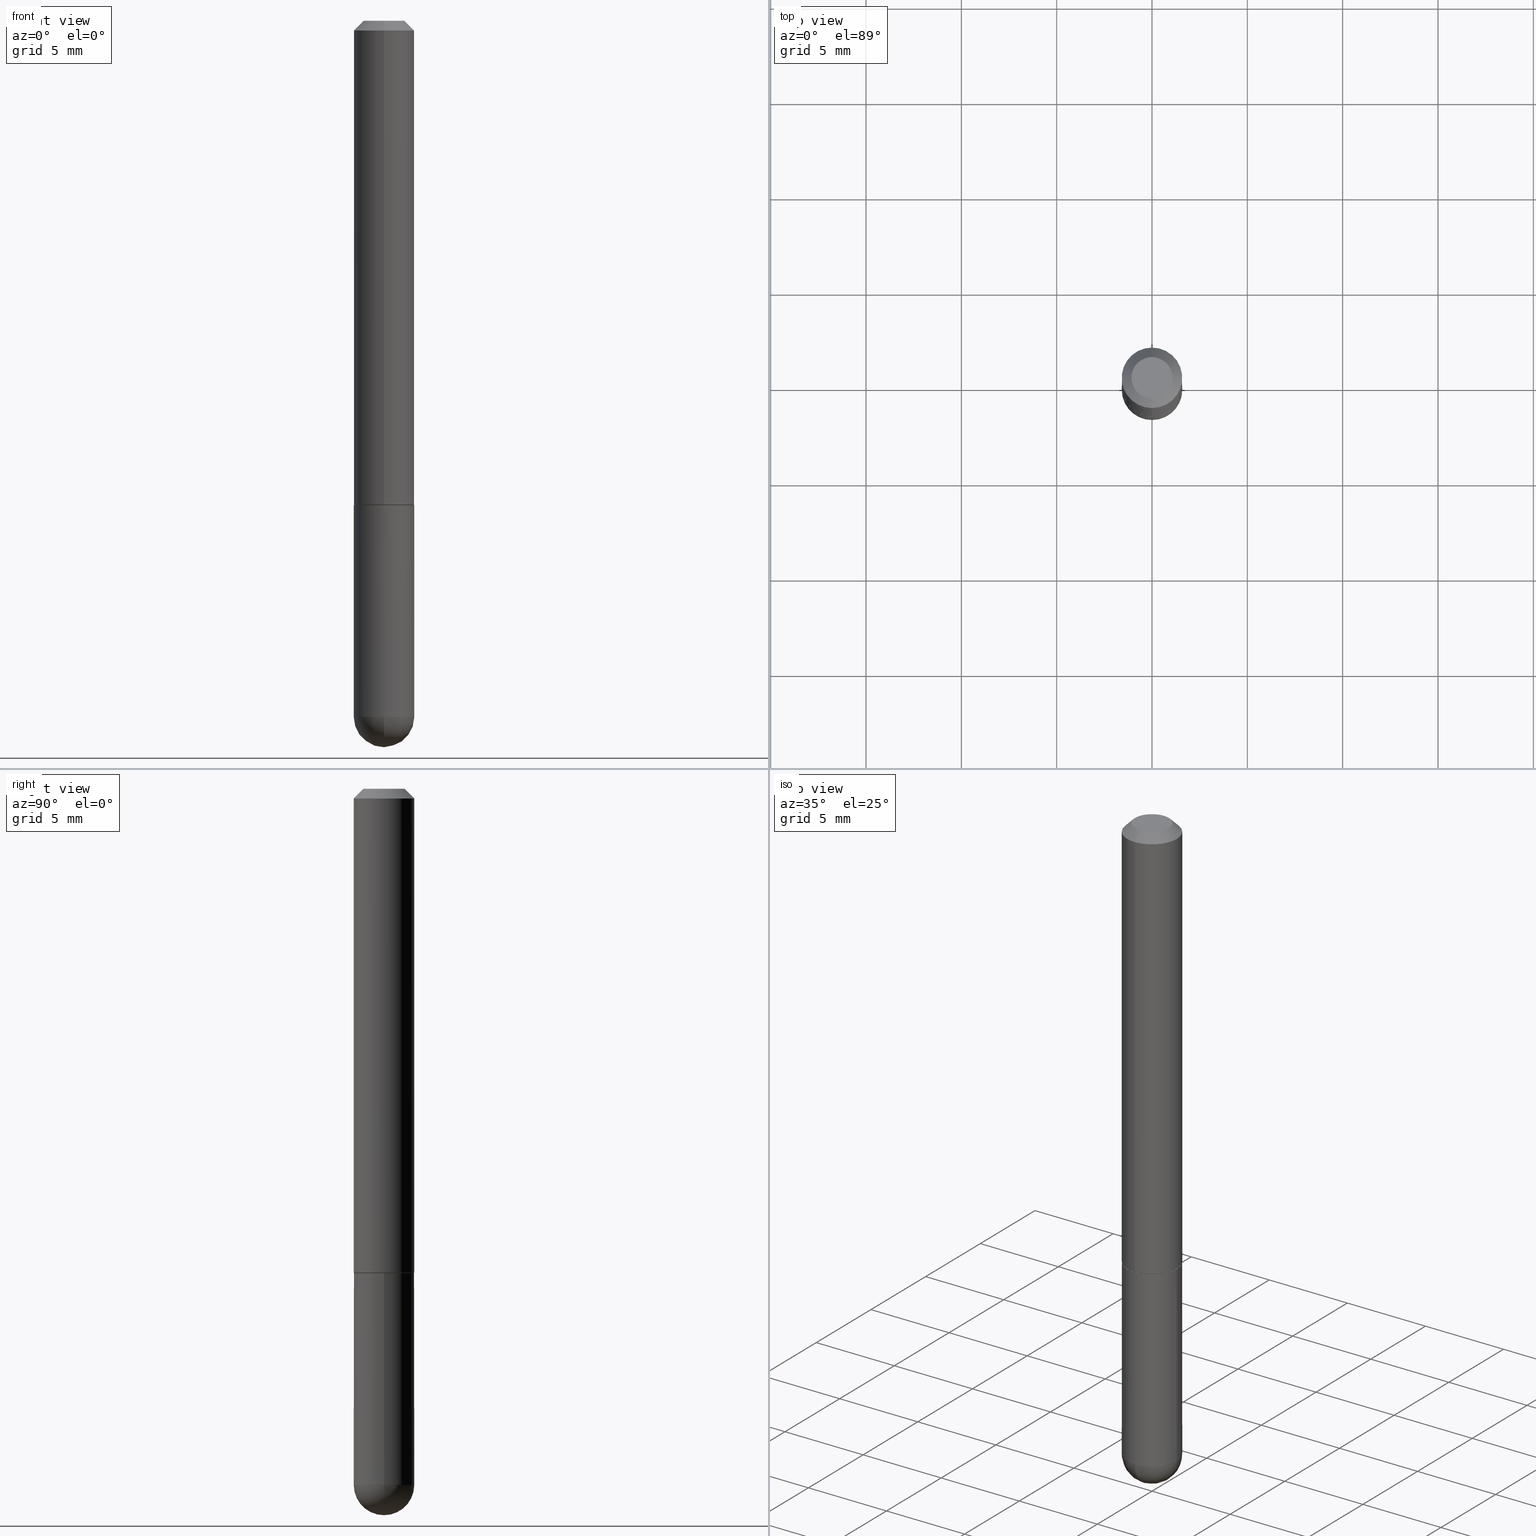
[diagram: canonical four-view strip — front | top / right | iso, engineering-drawing reading convention]
A machine part, canonical four-view strip (front | top / right | iso — engineering-drawing reading convention). The complete STEP part file that produces these views, byte-faithful:
ISO-10303-21;
HEADER;
FILE_DESCRIPTION (( 'STEP AP203' ),
    '1' );
FILE_NAME ('30516.STEP',
    '2024-02-21T16:39:18',
    ( '' ),
    ( '' ),
    'SwSTEP 2.0',
    'SolidWorks 2023',
    '' );
FILE_SCHEMA (( 'CONFIG_CONTROL_DESIGN' ));
ENDSEC;

DATA;
#1 = APPROVAL_DATE_TIME ( #30, #392 ) ;
#2 =( LENGTH_UNIT ( ) NAMED_UNIT ( * ) SI_UNIT ( $, .METRE. ) );
#3 = CIRCLE ( 'NONE', #51, 0.04249999999999978795 ) ;
#4 = AXIS2_PLACEMENT_3D ( 'NONE', #338, #281, #409 ) ;
#5 = DIRECTION ( 'NONE',  ( -6.982962677686265922E-15, -1.000000000000000000, 3.483106191921936738E-15 ) ) ;
#6 = ORIENTED_EDGE ( 'NONE', *, *, #143, .T. ) ;
#7 = CALENDAR_DATE ( 2024, 21, 2 ) ;
#8 = CC_DESIGN_SECURITY_CLASSIFICATION ( #80, ( #215 ) ) ;
#9 = ORIENTED_EDGE ( 'NONE', *, *, #324, .T. ) ;
#10 = EDGE_CURVE ( 'NONE', #211, #109, #16, .T. ) ;
#11 = DIRECTION ( 'NONE',  ( -2.445468806185136597E-29, 3.491481338843145583E-15, 1.000000000000000000 ) ) ;
#12 = ADVANCED_FACE ( 'NONE', ( #247 ), #179, .F. ) ;
#13 = APPROVAL ( #230, 'UNSPECIFIED' ) ;
#14 = AXIS2_PLACEMENT_3D ( 'NONE', #233, #386, #165 ) ;
#15 = PERSON_AND_ORGANIZATION ( #82, #203 ) ;
#16 = LINE ( 'NONE', #210, #79 ) ;
#17 = CARTESIAN_POINT ( 'NONE',  ( 3.184241630977248732E-29, -5.493186792727072638E-15, -1.437500000000000222 ) ) ;
#18 = LOCAL_TIME ( 11, 39, 18.00000000000000000, #168 ) ;
#19 = DIRECTION ( 'NONE',  ( -2.453213519139467542E-29, 3.480390469090857186E-15, 1.000000000000000000 ) ) ;
#20 = ORIENTED_EDGE ( 'NONE', *, *, #143, .F. ) ;
#21 = VERTEX_POINT ( 'NONE', #84 ) ;
#22 = ORIENTED_EDGE ( 'NONE', *, *, #394, .T. ) ;
#23 = ORIENTED_EDGE ( 'NONE', *, *, #105, .T. ) ;
#24 = DIRECTION ( 'NONE',  ( -2.453213519139467542E-29, 3.480390469090857186E-15, 1.000000000000000000 ) ) ;
#25 = DIRECTION ( 'NONE',  ( -1.000000000000000000, 6.982962677686266711E-15, -4.883557194083112901E-29 ) ) ;
#26 = APPROVAL_PERSON_ORGANIZATION ( #171, #197, #73 ) ;
#27 = CARTESIAN_POINT ( 'NONE',  ( 0.06249999999999997918, -3.927916506198537646E-15, -1.000000000000000222 ) ) ;
#28 = DIRECTION ( 'NONE',  ( -6.982962677686266711E-15, -1.000000000000000000, 3.480390469090857580E-15 ) ) ;
#29 = DIRECTION ( 'NONE',  ( -4.937700262164969294E-15, -0.7071067811866054154, 0.7071067811864896191 ) ) ;
#30 = DATE_AND_TIME ( #273, #253 ) ;
#31 = DIRECTION ( 'NONE',  ( -2.445468806185136597E-29, 3.491481338843145583E-15, 1.000000000000000000 ) ) ;
#32 = DIRECTION ( 'NONE',  ( 2.453213519139467262E-29, -3.480390469090857186E-15, -1.000000000000000000 ) ) ;
#33 = DATE_AND_TIME ( #385, #142 ) ;
#34 = AXIS2_PLACEMENT_3D ( 'NONE', #110, #32, #227 ) ;
#35 = EDGE_LOOP ( 'NONE', ( #49, #252 ) ) ;
#36 = SHAPE_DEFINITION_REPRESENTATION ( #55, #173 ) ;
#37 = CARTESIAN_POINT ( 'NONE',  ( 4.906427038278943738E-31, -6.960780938181726057E-17, -0.02000000000000003511 ) ) ;
#38 = EDGE_CURVE ( 'NONE', #219, #342, #217, .T. ) ;
#39 = AXIS2_PLACEMENT_3D ( 'NONE', #54, #145, #155 ) ;
#40 = AXIS2_PLACEMENT_3D ( 'NONE', #64, #31, #156 ) ;
#41 = VERTEX_POINT ( 'NONE', #254 ) ;
#42 = CARTESIAN_POINT ( 'NONE',  ( 3.515361408891134418E-29, -5.019004424587023131E-15, -1.437500000000000222 ) ) ;
#43 = DIRECTION ( 'NONE',  ( 1.000000000000000000, 0.000000000000000000, 0.000000000000000000 ) ) ;
#44 = CIRCLE ( 'NONE', #285, 0.04249999999999978795 ) ;
#45 = AXIS2_PLACEMENT_3D ( 'NONE', #341, #187, #62 ) ;
#46 = ADVANCED_FACE ( 'NONE', ( #374 ), #286, .T. ) ;
#47 = APPROVAL_ROLE ( '' ) ;
#48 = CYLINDRICAL_SURFACE ( 'NONE', #332, 0.06250000000000002776 ) ;
#49 = ORIENTED_EDGE ( 'NONE', *, *, #189, .T. ) ;
#50 = ADVANCED_FACE ( 'NONE', ( #339 ), #103, .T. ) ;
#51 = AXIS2_PLACEMENT_3D ( 'NONE', #226, #58, #370 ) ;
#52 = AXIS2_PLACEMENT_3D ( 'NONE', #67, #196, #380 ) ;
#53 = CARTESIAN_POINT ( 'NONE',  ( 4.906427038278943738E-31, -6.960780938181726057E-17, -0.02000000000000003511 ) ) ;
#54 = CARTESIAN_POINT ( 'NONE',  ( 0.000000000000000000, 0.000000000000000000, 0.000000000000000000 ) ) ;
#55 = PRODUCT_DEFINITION_SHAPE ( 'NONE', 'NONE',  #232 ) ;
#56 = DIRECTION ( 'NONE',  ( 6.982962677686266711E-15, 1.000000000000000000, -4.370956789862806950E-15 ) ) ;
#57 = FACE_OUTER_BOUND ( 'NONE', #235, .T. ) ;
#58 = DIRECTION ( 'NONE',  ( -2.453213519139467542E-29, 3.480390469090857186E-15, 1.000000000000000000 ) ) ;
#59 = DIRECTION ( 'NONE',  ( -6.982962677686266711E-15, -1.000000000000000000, 4.370956789862816416E-15 ) ) ;
#60 = DIRECTION ( 'NONE',  ( -2.453213519139467542E-29, 3.480390469090857186E-15, 1.000000000000000000 ) ) ;
#61 = CONICAL_SURFACE ( 'NONE', #225, 0.06149999999999997136, 0.7853981633975336552 ) ;
#62 = DIRECTION ( 'NONE',  ( -1.000000000000000000, 6.982962677686265922E-15, -4.876176775795935793E-29 ) ) ;
#63 = VERTEX_POINT ( 'NONE', #314 ) ;
#64 = CARTESIAN_POINT ( 'NONE',  ( 3.515361408891134418E-29, -5.019004424587023131E-15, -1.437500000000000222 ) ) ;
#65 = PLANE ( 'NONE',  #34 ) ;
#66 = LINE ( 'NONE', #195, #137 ) ;
#67 = CARTESIAN_POINT ( 'NONE',  ( 4.906427038278943738E-31, -6.960780938181726057E-17, -0.02000000000000003511 ) ) ;
#68 = ORIENTED_EDGE ( 'NONE', *, *, #378, .T. ) ;
#69 = CIRCLE ( 'NONE', #52, 0.06249999999999997918 ) ;
#70 = ORIENTED_EDGE ( 'NONE', *, *, #378, .F. ) ;
#71 = EDGE_CURVE ( 'NONE', #63, #231, #188, .T. ) ;
#72 = ORIENTED_EDGE ( 'NONE', *, *, #306, .T. ) ;
#73 = APPROVAL_ROLE ( '' ) ;
#74 = ORIENTED_EDGE ( 'NONE', *, *, #200, .F. ) ;
#75 = APPLICATION_PROTOCOL_DEFINITION ( 'international standard', 'config_control_design', 1994, #329 ) ;
#76 = APPROVAL_PERSON_ORGANIZATION ( #15, #392, #47 ) ;
#77 = DIRECTION ( 'NONE',  ( 1.000000000000000000, -6.982962677686265922E-15, 4.883557194083112340E-29 ) ) ;
#78 = ORIENTED_EDGE ( 'NONE', *, *, #10, .F. ) ;
#79 = VECTOR ( 'NONE', #408, 39.37007874015748143 ) ;
#80 = SECURITY_CLASSIFICATION ( '', '', #115 ) ;
#81 = COORDINATED_UNIVERSAL_TIME_OFFSET ( 5, 0, .BEHIND. ) ;
#82 = PERSON ( 'UNSPECIFIED', 'UNSPECIFIED', 'UNSPECIFIED', ('UNSPECIFIED'), ('UNSPECIFIED'), ('UNSPECIFIED') ) ;
#83 = DIRECTION ( 'NONE',  ( 1.000000000000000000, -6.982962677686265133E-15, 0.000000000000000000 ) ) ;
#84 = CARTESIAN_POINT ( 'NONE',  ( 4.364351673553919652E-16, 0.06249999999999991673, -0.02000000000000025022 ) ) ;
#85 = VERTEX_POINT ( 'NONE', #119 ) ;
#86 = LOCAL_TIME ( 11, 39, 18.00000000000000000, #81 ) ;
#87 = LINE ( 'NONE', #186, #396 ) ;
#88 = CARTESIAN_POINT ( 'NONE',  ( 2.453213519139467823E-29, -3.480390469090857580E-15, -1.000000000000000222 ) ) ;
#89 = DIRECTION ( 'NONE',  ( -2.445468806185136597E-29, 3.491481338843145583E-15, 1.000000000000000000 ) ) ;
#90 = EDGE_LOOP ( 'NONE', ( #170, #326, #404, #132 ) ) ;
#91 = CARTESIAN_POINT ( 'NONE',  ( 0.000000000000000000, 0.000000000000000000, 0.000000000000000000 ) ) ;
#92 = CARTESIAN_POINT ( 'NONE',  ( 3.339755826017505569E-29, -5.707577355157435366E-15, -1.500000000000000444 ) ) ;
#93 = DIRECTION ( 'NONE',  ( -6.982962677686266711E-15, -1.000000000000000000, 3.480390469090857580E-15 ) ) ;
#94 = PERSON_AND_ORGANIZATION ( #82, #203 ) ;
#95 = SPHERICAL_SURFACE ( 'NONE', #317, 0.06250000000000020817 ) ;
#96 = FACE_OUTER_BOUND ( 'NONE', #372, .T. ) ;
#97 = APPROVAL_DATE_TIME ( #350, #13 ) ;
#98 = CC_DESIGN_PERSON_AND_ORGANIZATION_ASSIGNMENT ( #94, #224, ( #215 ) ) ;
#99 = FACE_OUTER_BOUND ( 'NONE', #384, .T. ) ;
#100 = DIRECTION ( 'NONE',  ( -2.453213519139467542E-29, 3.480390469090857186E-15, 1.000000000000000000 ) ) ;
#101 = ORIENTED_EDGE ( 'NONE', *, *, #192, .F. ) ;
#102 = CARTESIAN_POINT ( 'NONE',  ( 4.906427038278943738E-31, -6.960780938181726057E-17, -0.02000000000000003511 ) ) ;
#103 = CONICAL_SURFACE ( 'NONE', #241, 0.06149999999999997136, 0.7853981633975336552 ) ;
#104 = AXIS2_PLACEMENT_3D ( 'NONE', #102, #238, #5 ) ;
#105 = EDGE_CURVE ( 'NONE', #282, #211, #406, .T. ) ;
#106 = DIRECTION ( 'NONE',  ( -2.453213519139467542E-29, 3.480390469090857186E-15, 1.000000000000000000 ) ) ;
#107 = ORIENTED_EDGE ( 'NONE', *, *, #128, .T. ) ;
#108 = MANIFOLD_SOLID_BREP ( 'Body-Move/Copy2[1]', #308 ) ;
#109 = VERTEX_POINT ( 'NONE', #27 ) ;
#110 = CARTESIAN_POINT ( 'NONE',  ( 2.967759138016647772E-16, 0.04249999999999978795, -3.290243868588570649E-17 ) ) ;
#111 = MANIFOLD_SOLID_BREP ( 'Body-Move/Copy2[2]', #345 ) ;
#112 = AXIS2_PLACEMENT_3D ( 'NONE', #228, #412, #93 ) ;
#113 = APPLICATION_PROTOCOL_DEFINITION ( 'international standard', 'config_control_design', 1994, #294 ) ;
#114 = EDGE_LOOP ( 'NONE', ( #68, #393, #305, #78, #401 ) ) ;
#115 = SECURITY_CLASSIFICATION_LEVEL ( 'unclassified' ) ;
#116 = ADVANCED_FACE ( 'NONE', ( #57 ), #368, .T. ) ;
#117 = VERTEX_POINT ( 'NONE', #92 ) ;
#118 = CYLINDRICAL_SURFACE ( 'NONE', #353, 0.06249999999999997918 ) ;
#119 = CARTESIAN_POINT ( 'NONE',  ( -4.364351673553676585E-16, -0.06250000000000355271, -0.9989999999999998881 ) ) ;
#120 = VERTEX_POINT ( 'NONE', #222 ) ;
#121 = AXIS2_PLACEMENT_3D ( 'NONE', #37, #360, #292 ) ;
#122 = DIRECTION ( 'NONE',  ( -6.982962677686265133E-15, -1.000000000000000000, 3.480390469090857186E-15 ) ) ;
#123 = EDGE_LOOP ( 'NONE', ( #270, #327 ) ) ;
#124 = EDGE_CURVE ( 'NONE', #201, #85, #346, .T. ) ;
#125 = DIRECTION ( 'NONE',  ( 1.000000000000000000, -6.982962677686265133E-15, 0.000000000000000000 ) ) ;
#126 = LINE ( 'NONE', #258, #152 ) ;
#127 = DIRECTION ( 'NONE',  ( 0.000000000000000000, 0.000000000000000000, 1.000000000000000000 ) ) ;
#128 = EDGE_CURVE ( 'NONE', #109, #266, #302, .T. ) ;
#129 = COORDINATED_UNIVERSAL_TIME_OFFSET ( 5, 0, .BEHIND. ) ;
#130 = VECTOR ( 'NONE', #29, 39.37007874015748143 ) ;
#131 = EDGE_CURVE ( 'NONE', #63, #41, #44, .T. ) ;
#132 = ORIENTED_EDGE ( 'NONE', *, *, #105, .F. ) ;
#133 = DESIGN_CONTEXT ( 'detailed design', #329, 'design' ) ;
#134 = CARTESIAN_POINT ( 'NONE',  ( 3.184241630977248732E-29, -5.493186792727072638E-15, -1.437500000000000222 ) ) ;
#135 = ORIENTED_EDGE ( 'NONE', *, *, #348, .T. ) ;
#136 = CONICAL_SURFACE ( 'NONE', #365, 0.06249999999999997918, 0.7853981633974466137 ) ;
#137 = VECTOR ( 'NONE', #159, 39.37007874015748143 ) ;
#138 = CARTESIAN_POINT ( 'NONE',  ( -4.294522046776806581E-16, -0.06150000000000345468, -0.9999999999999998890 ) ) ;
#139 = EDGE_LOOP ( 'NONE', ( #293, #72, #359, #325 ) ) ;
#140 = CARTESIAN_POINT ( 'NONE',  ( 2.453213519139467823E-29, -3.480390469090857580E-15, -1.000000000000000222 ) ) ;
#141 = EDGE_LOOP ( 'NONE', ( #367, #335, #357, #337 ) ) ;
#142 = LOCAL_TIME ( 11, 39, 18.00000000000000000, #260 ) ;
#143 = EDGE_CURVE ( 'NONE', #266, #109, #352, .T. ) ;
#144 = AXIS2_PLACEMENT_3D ( 'NONE', #383, #127, #43 ) ;
#145 = DIRECTION ( 'NONE',  ( -2.445468806185136597E-29, 3.491481338843145583E-15, 1.000000000000000000 ) ) ;
#146 = ORIENTED_EDGE ( 'NONE', *, *, #395, .F. ) ;
#147 = DIRECTION ( 'NONE',  ( 2.453213519139467542E-29, -3.480390469090857186E-15, -1.000000000000000000 ) ) ;
#148 = DIRECTION ( 'NONE',  ( -4.851104656540954809E-15, -0.7071067811865486830, -0.7071067811865462405 ) ) ;
#149 = DIRECTION ( 'NONE',  ( 4.937700262164538576E-15, 0.7071067811865437980, -0.7071067811865511255 ) ) ;
#150 = CARTESIAN_POINT ( 'NONE',  ( 2.450760305620328687E-29, -3.476910078621766829E-15, -0.9990000000000002212 ) ) ;
#151 = DIRECTION ( 'NONE',  ( 6.982962677686266711E-15, 1.000000000000000000, -4.370956789862806950E-15 ) ) ;
#152 = VECTOR ( 'NONE', #349, 39.37007874015748143 ) ;
#153 = FACE_OUTER_BOUND ( 'NONE', #114, .T. ) ;
#154 = DIRECTION ( 'NONE',  ( -1.000000000000000000, 7.105427357601001070E-15, -4.926315508542082329E-29 ) ) ;
#155 = DIRECTION ( 'NONE',  ( 1.000000000000000000, -6.982962677686267499E-15, 4.876176775795936353E-29 ) ) ;
#156 = DIRECTION ( 'NONE',  ( 1.000000000000000000, -6.982962677686265133E-15, 0.000000000000000000 ) ) ;
#157 = ADVANCED_FACE ( 'NONE', ( #405 ), #95, .T. ) ;
#158 = CARTESIAN_POINT ( 'NONE',  ( -5.643085660121685245E-45, 8.005883464493595034E-31, 2.300283125009499569E-16 ) ) ;
#159 = DIRECTION ( 'NONE',  ( -2.445468806185136877E-29, 3.491481338843145188E-15, 1.000000000000000000 ) ) ;
#160 = AXIS2_PLACEMENT_3D ( 'NONE', #256, #381, #216 ) ;
#161 = AXIS2_PLACEMENT_3D ( 'NONE', #42, #11, #83 ) ;
#162 = PERSON_AND_ORGANIZATION ( #82, #203 ) ;
#163 = ORIENTED_EDGE ( 'NONE', *, *, #131, .F. ) ;
#164 = CARTESIAN_POINT ( 'NONE',  ( 4.364351673554257876E-16, 0.06249999999999484440, -1.437500000000000444 ) ) ;
#165 = DIRECTION ( 'NONE',  ( -6.982962677686265922E-15, -1.000000000000000000, 4.442029257990673709E-15 ) ) ;
#166 = ORIENTED_EDGE ( 'NONE', *, *, #324, .F. ) ;
#167 = CIRCLE ( 'NONE', #336, 0.06149999999999997136 ) ;
#168 = COORDINATED_UNIVERSAL_TIME_OFFSET ( 5, 0, .BEHIND. ) ;
#169 = CARTESIAN_POINT ( 'NONE',  ( -0.06249999999999997918, -3.811153671865022332E-15, -1.000000000000000222 ) ) ;
#170 = ORIENTED_EDGE ( 'NONE', *, *, #364, .F. ) ;
#171 = PERSON_AND_ORGANIZATION ( #82, #203 ) ;
#172 = CIRCLE ( 'NONE', #291, 0.06250000000000020817 ) ;
#173 = ADVANCED_BREP_SHAPE_REPRESENTATION ( '30516', ( #108, #111, #144 ), #242 ) ;
#174 = DATE_AND_TIME ( #274, #18 ) ;
#175 = ADVANCED_FACE ( 'NONE', ( #312 ), #136, .T. ) ;
#176 = EDGE_CURVE ( 'NONE', #120, #282, #180, .T. ) ;
#177 = DIRECTION ( 'NONE',  ( 1.000000000000000000, -6.982962677686265133E-15, 0.000000000000000000 ) ) ;
#178 = CARTESIAN_POINT ( 'NONE',  ( 0.000000000000000000, 0.000000000000000000, 0.000000000000000000 ) ) ;
#179 = PLANE ( 'NONE',  #208 ) ;
#180 = CIRCLE ( 'NONE', #4, 0.06249999999999997918 ) ;
#181 = CIRCLE ( 'NONE', #407, 0.06250000000000006939 ) ;
#182 = CC_DESIGN_PERSON_AND_ORGANIZATION_ASSIGNMENT ( #334, #244, ( #232 ) ) ;
#183 = CARTESIAN_POINT ( 'NONE',  ( 3.184241630977248732E-29, -5.493186792727072638E-15, -1.437500000000000222 ) ) ;
#184 = EDGE_LOOP ( 'NONE', ( #202, #361, #298, #206 ) ) ;
#185 = DIRECTION ( 'NONE',  ( 6.982962677686265922E-15, 1.000000000000000000, -3.483106191921936738E-15 ) ) ;
#186 = CARTESIAN_POINT ( 'NONE',  ( 4.440892098500628134E-16, 0.06250000000000002776, -2.175244043181786974E-16 ) ) ;
#187 = DIRECTION ( 'NONE',  ( 2.438088387897960049E-29, -3.491481338843145188E-15, -1.000000000000000000 ) ) ;
#188 = LINE ( 'NONE', #280, #245 ) ;
#189 = EDGE_CURVE ( 'NONE', #41, #63, #3, .T. ) ;
#190 = LENGTH_MEASURE_WITH_UNIT ( LENGTH_MEASURE( 0.02539999999999999897 ), #2 );
#191 = CC_DESIGN_APPROVAL ( #13, ( #80 ) ) ;
#192 = EDGE_CURVE ( 'NONE', #342, #21, #87, .T. ) ;
#193 = CARTESIAN_POINT ( 'NONE',  ( 4.364351673553919652E-16, 0.06249999999999991673, -0.02000000000000025022 ) ) ;
#194 = DIRECTION ( 'NONE',  ( -7.105427357601000281E-15, -1.000000000000000000, 0.000000000000000000 ) ) ;
#195 = CARTESIAN_POINT ( 'NONE',  ( -0.06249999999999997918, 4.440892098500624683E-16, -3.074334431409315413E-30 ) ) ;
#196 = DIRECTION ( 'NONE',  ( -2.453213519139467542E-29, 3.480390469090857186E-15, 1.000000000000000000 ) ) ;
#197 = APPROVAL ( #358, 'UNSPECIFIED' ) ;
#198 = AXIS2_PLACEMENT_3D ( 'NONE', #183, #154, #194 ) ;
#199 = ORIENTED_EDGE ( 'NONE', *, *, #71, .T. ) ;
#200 = EDGE_CURVE ( 'NONE', #41, #21, #288, .T. ) ;
#201 = VERTEX_POINT ( 'NONE', #284 ) ;
#202 = ORIENTED_EDGE ( 'NONE', *, *, #275, .T. ) ;
#203 = ORGANIZATION ( 'UNSPECIFIED', 'UNSPECIFIED', '' ) ;
#204 = ADVANCED_FACE ( 'NONE', ( #153 ), #118, .T. ) ;
#205 = DIRECTION ( 'NONE',  ( -6.982962677686266711E-15, -1.000000000000000000, 4.370956789862816416E-15 ) ) ;
#206 = ORIENTED_EDGE ( 'NONE', *, *, #124, .F. ) ;
#207 = CALENDAR_DATE ( 2024, 21, 2 ) ;
#208 = AXIS2_PLACEMENT_3D ( 'NONE', #88, #411, #213 ) ;
#209 = CIRCLE ( 'NONE', #14, 0.06149999999999997136 ) ;
#210 = CARTESIAN_POINT ( 'NONE',  ( 0.06249999999999997918, -4.364351673553915708E-16, 3.047610484872459170E-30 ) ) ;
#211 = VERTEX_POINT ( 'NONE', #344 ) ;
#212 = PLANE ( 'NONE',  #45 ) ;
#213 = DIRECTION ( 'NONE',  ( -6.982962677686265922E-15, -1.000000000000000000, 3.480390469090857186E-15 ) ) ;
#214 = ORIENTED_EDGE ( 'NONE', *, *, #313, .T. ) ;
#215 = PRODUCT_DEFINITION_FORMATION_WITH_SPECIFIED_SOURCE ( 'ANY', '', #343, .NOT_KNOWN. ) ;
#216 = DIRECTION ( 'NONE',  ( 1.000000000000000000, -6.982962677686265133E-15, 0.000000000000000000 ) ) ;
#217 = LINE ( 'NONE', #257, #234 ) ;
#218 = CC_DESIGN_PERSON_AND_ORGANIZATION_ASSIGNMENT ( #321, #375, ( #215 ) ) ;
#219 = VERTEX_POINT ( 'NONE', #320 ) ;
#220 = DIRECTION ( 'NONE',  ( 1.000000000000000000, -6.982962677686267499E-15, 4.876176775795936353E-29 ) ) ;
#221 =( CONVERSION_BASED_UNIT ( 'INCH', #190 ) LENGTH_UNIT ( ) NAMED_UNIT ( #362 ) );
#222 = CARTESIAN_POINT ( 'NONE',  ( -0.06249999999999997918, -3.811153671865022332E-15, -1.437500000000000222 ) ) ;
#223 = CYLINDRICAL_SURFACE ( 'NONE', #112, 0.06250000000000002776 ) ;
#224 = PERSON_AND_ORGANIZATION_ROLE ( 'design_supplier' ) ;
#225 = AXIS2_PLACEMENT_3D ( 'NONE', #307, #100, #354 ) ;
#226 = CARTESIAN_POINT ( 'NONE',  ( -5.643085660121685245E-45, 8.005883464493595034E-31, 2.300283125009499569E-16 ) ) ;
#227 = DIRECTION ( 'NONE',  ( 6.982962677686265922E-15, 1.000000000000000000, -3.480390469090857186E-15 ) ) ;
#228 = CARTESIAN_POINT ( 'NONE',  ( 0.000000000000000000, 0.000000000000000000, 0.000000000000000000 ) ) ;
#229 = ADVANCED_FACE ( 'NONE', ( #347 ), #61, .T. ) ;
#230 = APPROVAL_STATUS ( 'not_yet_approved' ) ;
#231 = VERTEX_POINT ( 'NONE', #269 ) ;
#232 = PRODUCT_DEFINITION ( 'UNKNOWN', '', #215, #133 ) ;
#233 = CARTESIAN_POINT ( 'NONE',  ( 2.453213519139467823E-29, -3.480390469090857580E-15, -1.000000000000000222 ) ) ;
#234 = VECTOR ( 'NONE', #310, 39.37007874015748143 ) ;
#235 = EDGE_LOOP ( 'NONE', ( #389, #287, #246, #70 ) ) ;
#236 = PERSON_AND_ORGANIZATION ( #82, #203 ) ;
#237 = CC_DESIGN_PERSON_AND_ORGANIZATION_ASSIGNMENT ( #236, #300, ( #343 ) ) ;
#238 = DIRECTION ( 'NONE',  ( -2.453213519139467542E-29, 3.480390469090857186E-15, 1.000000000000000000 ) ) ;
#239 = ADVANCED_FACE ( 'NONE', ( #391 ), #65, .F. ) ;
#240 = EDGE_LOOP ( 'NONE', ( #163, #199, #9, #74 ) ) ;
#241 = AXIS2_PLACEMENT_3D ( 'NONE', #379, #60, #402 ) ;
#242 =( GEOMETRIC_REPRESENTATION_CONTEXT ( 3 ) GLOBAL_UNCERTAINTY_ASSIGNED_CONTEXT ( ( #322 ) ) GLOBAL_UNIT_ASSIGNED_CONTEXT ( ( #221, #289, #382 ) ) REPRESENTATION_CONTEXT ( 'NONE', 'WORKASPACE' ) );
#243 = CC_DESIGN_APPROVAL ( #197, ( #232 ) ) ;
#244 = PERSON_AND_ORGANIZATION_ROLE ( 'creator' ) ;
#245 = VECTOR ( 'NONE', #148, 39.37007874015748854 ) ;
#246 = ORIENTED_EDGE ( 'NONE', *, *, #176, .F. ) ;
#247 = FACE_OUTER_BOUND ( 'NONE', #123, .T. ) ;
#248 = ORIENTED_EDGE ( 'NONE', *, *, #10, .T. ) ;
#249 = DIRECTION ( 'NONE',  ( -2.445468806185136597E-29, 3.491481338843145583E-15, 1.000000000000000000 ) ) ;
#250 = DIRECTION ( 'NONE',  ( -2.445468806185136597E-29, 3.491481338843145583E-15, 1.000000000000000000 ) ) ;
#251 = CARTESIAN_POINT ( 'NONE',  ( 4.440892098500754352E-16, 0.06249999999999659994, -0.9990000000000004432 ) ) ;
#252 = ORIENTED_EDGE ( 'NONE', *, *, #131, .T. ) ;
#253 = LOCAL_TIME ( 11, 39, 18.00000000000000000, #303 ) ;
#254 = CARTESIAN_POINT ( 'NONE',  ( 3.666055405785283712E-16, 0.04249999999999978795, 8.211171756458927195E-17 ) ) ;
#255 = EDGE_CURVE ( 'NONE', #120, #266, #66, .T. ) ;
#256 = CARTESIAN_POINT ( 'NONE',  ( 2.445468806185136877E-29, -3.491481338843145977E-15, -1.000000000000000222 ) ) ;
#257 = CARTESIAN_POINT ( 'NONE',  ( 4.369837824924858655E-16, 0.06149999999999648803, -1.000000000000000444 ) ) ;
#258 = CARTESIAN_POINT ( 'NONE',  ( -4.364351673553918666E-16, -0.06250000000000002776, 2.175244043181786974E-16 ) ) ;
#259 = PERSON_AND_ORGANIZATION_ROLE ( 'classification_officer' ) ;
#260 = COORDINATED_UNIVERSAL_TIME_OFFSET ( 5, 0, .BEHIND. ) ;
#261 = CIRCLE ( 'NONE', #40, 0.06249999999999997918 ) ;
#262 = PRODUCT_RELATED_PRODUCT_CATEGORY ( 'detail', '', ( #343 ) ) ;
#263 = APPROVAL_ROLE ( '' ) ;
#264 = FACE_OUTER_BOUND ( 'NONE', #141, .T. ) ;
#265 = DIRECTION ( 'NONE',  ( 6.982962677686265922E-15, 1.000000000000000000, 0.000000000000000000 ) ) ;
#266 = VERTEX_POINT ( 'NONE', #169 ) ;
#267 = CC_DESIGN_APPROVAL ( #392, ( #215 ) ) ;
#268 = DIRECTION ( 'NONE',  ( -6.982962677686265922E-15, -1.000000000000000000, 4.442029257990673709E-15 ) ) ;
#269 = CARTESIAN_POINT ( 'NONE',  ( -4.287811248607200817E-16, -0.06250000000000005551, -0.01999999999999981654 ) ) ;
#270 = ORIENTED_EDGE ( 'NONE', *, *, #275, .F. ) ;
#271 = ADVANCED_FACE ( 'NONE', ( #264 ), #328, .T. ) ;
#272 = ORIENTED_EDGE ( 'NONE', *, *, #394, .F. ) ;
#273 = CALENDAR_DATE ( 2024, 21, 2 ) ;
#274 = CALENDAR_DATE ( 2024, 21, 2 ) ;
#275 = EDGE_CURVE ( 'NONE', #201, #219, #167, .T. ) ;
#276 = CC_DESIGN_DATE_AND_TIME_ASSIGNMENT ( #33, #323, ( #80 ) ) ;
#277 = AXIS2_PLACEMENT_3D ( 'NONE', #318, #250, #125 ) ;
#278 = VECTOR ( 'NONE', #149, 39.37007874015748854 ) ;
#279 = ORIENTED_EDGE ( 'NONE', *, *, #176, .T. ) ;
#280 = CARTESIAN_POINT ( 'NONE',  ( -4.287811248607200817E-16, -0.06250000000000005551, -0.01999999999999981654 ) ) ;
#281 = DIRECTION ( 'NONE',  ( -2.445468806185136597E-29, 3.491481338843145583E-15, 1.000000000000000000 ) ) ;
#282 = VERTEX_POINT ( 'NONE', #390 ) ;
#283 = CC_DESIGN_DATE_AND_TIME_ASSIGNMENT ( #363, #330, ( #232 ) ) ;
#284 = CARTESIAN_POINT ( 'NONE',  ( -4.294522046776806581E-16, -0.06150000000000345468, -0.9999999999999998890 ) ) ;
#285 = AXIS2_PLACEMENT_3D ( 'NONE', #158, #315, #122 ) ;
#286 = CYLINDRICAL_SURFACE ( 'NONE', #39, 0.06249999999999997918 ) ;
#287 = ORIENTED_EDGE ( 'NONE', *, *, #364, .T. ) ;
#288 = LINE ( 'NONE', #193, #278 ) ;
#289 =( NAMED_UNIT ( * ) PLANE_ANGLE_UNIT ( ) SI_UNIT ( $, .RADIAN. ) );
#290 = AXIS2_PLACEMENT_3D ( 'NONE', #316, #25, #151 ) ;
#291 = AXIS2_PLACEMENT_3D ( 'NONE', #134, #77, #265 ) ;
#292 = DIRECTION ( 'NONE',  ( 6.982962677686265922E-15, 1.000000000000000000, -3.483106191921936738E-15 ) ) ;
#293 = ORIENTED_EDGE ( 'NONE', *, *, #38, .F. ) ;
#294 = APPLICATION_CONTEXT ( 'configuration controlled 3d designs of mechanical parts and assemblies' ) ;
#295 = CC_DESIGN_PERSON_AND_ORGANIZATION_ASSIGNMENT ( #397, #259, ( #80 ) ) ;
#296 = CARTESIAN_POINT ( 'NONE',  ( 2.450760305620328687E-29, -3.476910078621766829E-15, -0.9990000000000002212 ) ) ;
#297 = DIRECTION ( 'NONE',  ( -2.453213519139467542E-29, 3.480390469090857186E-15, 1.000000000000000000 ) ) ;
#298 = ORIENTED_EDGE ( 'NONE', *, *, #348, .F. ) ;
#299 = CIRCLE ( 'NONE', #104, 0.06249999999999997918 ) ;
#300 = PERSON_AND_ORGANIZATION_ROLE ( 'design_owner' ) ;
#301 = ORIENTED_EDGE ( 'NONE', *, *, #255, .F. ) ;
#302 = CIRCLE ( 'NONE', #160, 0.06249999999999997918 ) ;
#303 = COORDINATED_UNIVERSAL_TIME_OFFSET ( 5, 0, .BEHIND. ) ;
#304 = EDGE_CURVE ( 'NONE', #117, #311, #172, .T. ) ;
#305 = ORIENTED_EDGE ( 'NONE', *, *, #128, .F. ) ;
#306 = EDGE_CURVE ( 'NONE', #219, #201, #209, .T. ) ;
#307 = CARTESIAN_POINT ( 'NONE',  ( 2.453213519139467823E-29, -3.480390469090857580E-15, -1.000000000000000222 ) ) ;
#308 = CLOSED_SHELL ( 'NONE', ( #204, #116, #157, #355, #46 ) ) ;
#309 = LOCAL_TIME ( 11, 39, 18.00000000000000000, #129 ) ;
#310 = DIRECTION ( 'NONE',  ( 5.024295867788490741E-15, 0.7071067811866103003, 0.7071067811864847341 ) ) ;
#311 = VERTEX_POINT ( 'NONE', #164 ) ;
#312 = FACE_OUTER_BOUND ( 'NONE', #240, .T. ) ;
#313 = EDGE_CURVE ( 'NONE', #342, #85, #400, .T. ) ;
#314 = CARTESIAN_POINT ( 'NONE',  ( -3.601761448830043066E-16, -0.04249999999999978795, 3.779449074373106418E-16 ) ) ;
#315 = DIRECTION ( 'NONE',  ( -2.453213519139467542E-29, 3.480390469090857186E-15, 1.000000000000000000 ) ) ;
#316 = CARTESIAN_POINT ( 'NONE',  ( 3.184241630977248732E-29, -5.493186792727072638E-15, -1.437500000000000222 ) ) ;
#317 = AXIS2_PLACEMENT_3D ( 'NONE', #17, #340, #56 ) ;
#318 = CARTESIAN_POINT ( 'NONE',  ( 3.515361408891134418E-29, -5.019004424587023131E-15, -1.437500000000000222 ) ) ;
#319 = APPROVAL_PERSON_ORGANIZATION ( #162, #13, #263 ) ;
#320 = CARTESIAN_POINT ( 'NONE',  ( 4.405364961712867147E-16, 0.06149999999999648803, -1.000000000000000444 ) ) ;
#321 = PERSON_AND_ORGANIZATION ( #82, #203 ) ;
#322 = UNCERTAINTY_MEASURE_WITH_UNIT (LENGTH_MEASURE( 1.000000000000000082E-05 ), #221, 'distance_accuracy_value', 'NONE');
#323 = DATE_TIME_ROLE ( 'classification_date' ) ;
#324 = EDGE_CURVE ( 'NONE', #231, #21, #299, .T. ) ;
#325 = ORIENTED_EDGE ( 'NONE', *, *, #313, .F. ) ;
#326 = ORIENTED_EDGE ( 'NONE', *, *, #304, .T. ) ;
#327 = ORIENTED_EDGE ( 'NONE', *, *, #306, .F. ) ;
#328 = CONICAL_SURFACE ( 'NONE', #121, 0.06249999999999997918, 0.7853981633974466137 ) ;
#329 = APPLICATION_CONTEXT ( 'configuration controlled 3d designs of mechanical parts and assemblies' ) ;
#330 = DATE_TIME_ROLE ( 'creation_date' ) ;
#331 = AXIS2_PLACEMENT_3D ( 'NONE', #376, #89, #177 ) ;
#332 = AXIS2_PLACEMENT_3D ( 'NONE', #178, #19, #28 ) ;
#333 = EDGE_CURVE ( 'NONE', #211, #311, #387, .T. ) ;
#334 = PERSON_AND_ORGANIZATION ( #82, #203 ) ;
#335 = ORIENTED_EDGE ( 'NONE', *, *, #189, .F. ) ;
#336 = AXIS2_PLACEMENT_3D ( 'NONE', #140, #106, #268 ) ;
#337 = ORIENTED_EDGE ( 'NONE', *, *, #395, .T. ) ;
#338 = CARTESIAN_POINT ( 'NONE',  ( 3.515361408891134418E-29, -5.019004424587023131E-15, -1.437500000000000222 ) ) ;
#339 = FACE_OUTER_BOUND ( 'NONE', #139, .T. ) ;
#340 = DIRECTION ( 'NONE',  ( -1.000000000000000000, 6.982962677686266711E-15, -4.883557194083112901E-29 ) ) ;
#341 = CARTESIAN_POINT ( 'NONE',  ( 4.364351673554159269E-16, 0.06249999999999648892, -1.000000000000000444 ) ) ;
#342 = VERTEX_POINT ( 'NONE', #251 ) ;
#343 = PRODUCT ( '30516', '30516', '', ( #356 ) ) ;
#344 = CARTESIAN_POINT ( 'NONE',  ( 0.06249999999999997918, -4.691678049070475040E-15, -1.437500000000000222 ) ) ;
#345 = CLOSED_SHELL ( 'NONE', ( #229, #377, #175, #271, #388, #50, #12, #239 ) ) ;
#346 = LINE ( 'NONE', #138, #130 ) ;
#347 = FACE_OUTER_BOUND ( 'NONE', #184, .T. ) ;
#348 = EDGE_CURVE ( 'NONE', #85, #342, #181, .T. ) ;
#349 = DIRECTION ( 'NONE',  ( -2.453213519139467542E-29, 3.480390469090857186E-15, 1.000000000000000000 ) ) ;
#350 = DATE_AND_TIME ( #7, #309 ) ;
#351 = ORIENTED_EDGE ( 'NONE', *, *, #192, .T. ) ;
#352 = CIRCLE ( 'NONE', #331, 0.06249999999999997918 ) ;
#353 = AXIS2_PLACEMENT_3D ( 'NONE', #91, #249, #220 ) ;
#354 = DIRECTION ( 'NONE',  ( -6.982962677686265922E-15, -1.000000000000000000, 4.442029257990673709E-15 ) ) ;
#355 = ADVANCED_FACE ( 'NONE', ( #410 ), #212, .F. ) ;
#356 = MECHANICAL_CONTEXT ( 'NONE', #294, 'mechanical' ) ;
#357 = ORIENTED_EDGE ( 'NONE', *, *, #200, .T. ) ;
#358 = APPROVAL_STATUS ( 'not_yet_approved' ) ;
#359 = ORIENTED_EDGE ( 'NONE', *, *, #124, .T. ) ;
#360 = DIRECTION ( 'NONE',  ( 2.453213519139467542E-29, -3.480390469090857186E-15, -1.000000000000000000 ) ) ;
#361 = ORIENTED_EDGE ( 'NONE', *, *, #38, .T. ) ;
#362 = DIMENSIONAL_EXPONENTS ( 1.000000000000000000, 0.000000000000000000, 0.000000000000000000, 0.000000000000000000, 0.000000000000000000, 0.000000000000000000, 0.000000000000000000 ) ;
#363 = DATE_AND_TIME ( #207, #86 ) ;
#364 = EDGE_CURVE ( 'NONE', #117, #282, #371, .T. ) ;
#365 = AXIS2_PLACEMENT_3D ( 'NONE', #53, #147, #185 ) ;
#366 = AXIS2_PLACEMENT_3D ( 'NONE', #296, #297, #205 ) ;
#367 = ORIENTED_EDGE ( 'NONE', *, *, #71, .F. ) ;
#368 = SPHERICAL_SURFACE ( 'NONE', #290, 0.06250000000000020817 ) ;
#369 = EDGE_LOOP ( 'NONE', ( #301, #279, #23, #248, #20 ) ) ;
#370 = DIRECTION ( 'NONE',  ( -6.982962677686265133E-15, -1.000000000000000000, 3.480390469090857186E-15 ) ) ;
#371 = CIRCLE ( 'NONE', #198, 0.06250000000000020817 ) ;
#372 = EDGE_LOOP ( 'NONE', ( #135, #351, #166, #272 ) ) ;
#373 = DIRECTION ( 'NONE',  ( -2.453213519139467542E-29, 3.480390469090857186E-15, 1.000000000000000000 ) ) ;
#374 = FACE_OUTER_BOUND ( 'NONE', #369, .T. ) ;
#375 = PERSON_AND_ORGANIZATION_ROLE ( 'creator' ) ;
#376 = CARTESIAN_POINT ( 'NONE',  ( 2.445468806185136877E-29, -3.491481338843145977E-15, -1.000000000000000222 ) ) ;
#377 = ADVANCED_FACE ( 'NONE', ( #96 ), #48, .T. ) ;
#378 = EDGE_CURVE ( 'NONE', #311, #120, #261, .T. ) ;
#379 = CARTESIAN_POINT ( 'NONE',  ( 2.453213519139467823E-29, -3.480390469090857580E-15, -1.000000000000000222 ) ) ;
#380 = DIRECTION ( 'NONE',  ( -6.982962677686265922E-15, -1.000000000000000000, 3.483106191921936738E-15 ) ) ;
#381 = DIRECTION ( 'NONE',  ( -2.445468806185136597E-29, 3.491481338843145583E-15, 1.000000000000000000 ) ) ;
#382 =( NAMED_UNIT ( * ) SI_UNIT ( $, .STERADIAN. ) SOLID_ANGLE_UNIT ( ) );
#383 = CARTESIAN_POINT ( 'NONE',  ( 0.000000000000000000, 0.000000000000000000, 0.000000000000000000 ) ) ;
#384 = EDGE_LOOP ( 'NONE', ( #101, #214, #22, #146 ) ) ;
#385 = CALENDAR_DATE ( 2024, 21, 2 ) ;
#386 = DIRECTION ( 'NONE',  ( -2.453213519139467542E-29, 3.480390469090857186E-15, 1.000000000000000000 ) ) ;
#387 = CIRCLE ( 'NONE', #161, 0.06249999999999997918 ) ;
#388 = ADVANCED_FACE ( 'NONE', ( #99 ), #223, .T. ) ;
#389 = ORIENTED_EDGE ( 'NONE', *, *, #304, .F. ) ;
#390 = CARTESIAN_POINT ( 'NONE',  ( -4.440892098500296812E-16, -0.06250000000000534295, -1.437500000000000000 ) ) ;
#391 = FACE_OUTER_BOUND ( 'NONE', #35, .T. ) ;
#392 = APPROVAL ( #399, 'UNSPECIFIED' ) ;
#393 = ORIENTED_EDGE ( 'NONE', *, *, #255, .T. ) ;
#394 = EDGE_CURVE ( 'NONE', #85, #231, #126, .T. ) ;
#395 = EDGE_CURVE ( 'NONE', #21, #231, #69, .T. ) ;
#396 = VECTOR ( 'NONE', #24, 39.37007874015748143 ) ;
#397 = PERSON_AND_ORGANIZATION ( #82, #203 ) ;
#398 = APPROVAL_DATE_TIME ( #174, #197 ) ;
#399 = APPROVAL_STATUS ( 'not_yet_approved' ) ;
#400 = CIRCLE ( 'NONE', #366, 0.06250000000000006939 ) ;
#401 = ORIENTED_EDGE ( 'NONE', *, *, #333, .T. ) ;
#402 = DIRECTION ( 'NONE',  ( -6.982962677686265922E-15, -1.000000000000000000, 4.442029257990673709E-15 ) ) ;
#403 = EDGE_LOOP ( 'NONE', ( #107, #6 ) ) ;
#404 = ORIENTED_EDGE ( 'NONE', *, *, #333, .F. ) ;
#405 = FACE_OUTER_BOUND ( 'NONE', #90, .T. ) ;
#406 = CIRCLE ( 'NONE', #277, 0.06249999999999997918 ) ;
#407 = AXIS2_PLACEMENT_3D ( 'NONE', #150, #373, #59 ) ;
#408 = DIRECTION ( 'NONE',  ( -2.445468806185136877E-29, 3.491481338843145188E-15, 1.000000000000000000 ) ) ;
#409 = DIRECTION ( 'NONE',  ( 1.000000000000000000, -6.982962677686265133E-15, 0.000000000000000000 ) ) ;
#410 = FACE_OUTER_BOUND ( 'NONE', #403, .T. ) ;
#411 = DIRECTION ( 'NONE',  ( -2.453213519139467262E-29, 3.480390469090857186E-15, 1.000000000000000000 ) ) ;
#412 = DIRECTION ( 'NONE',  ( -2.453213519139467542E-29, 3.480390469090857186E-15, 1.000000000000000000 ) ) ;
ENDSEC;
END-ISO-10303-21;
